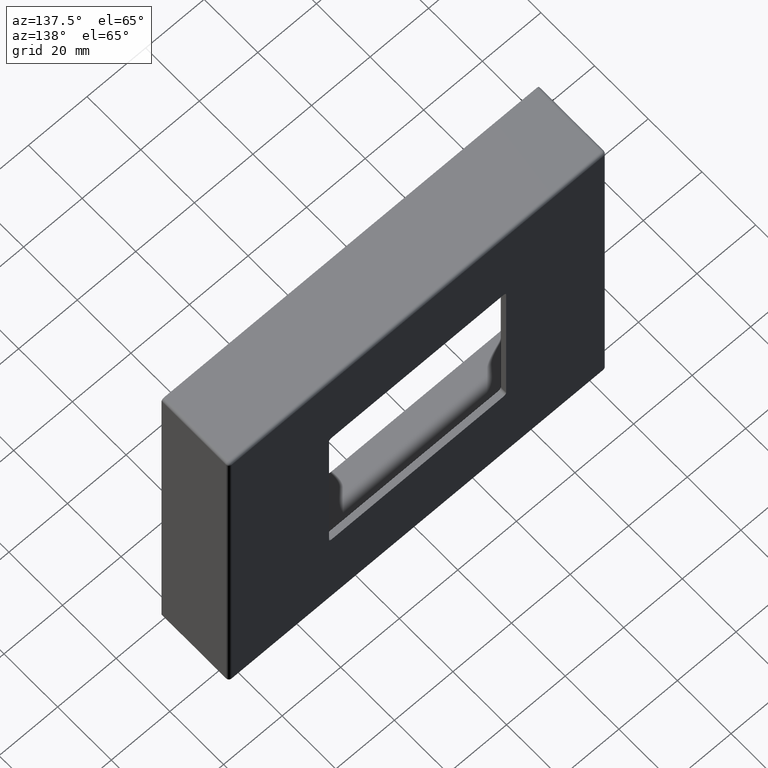
[diagram: clean part render]
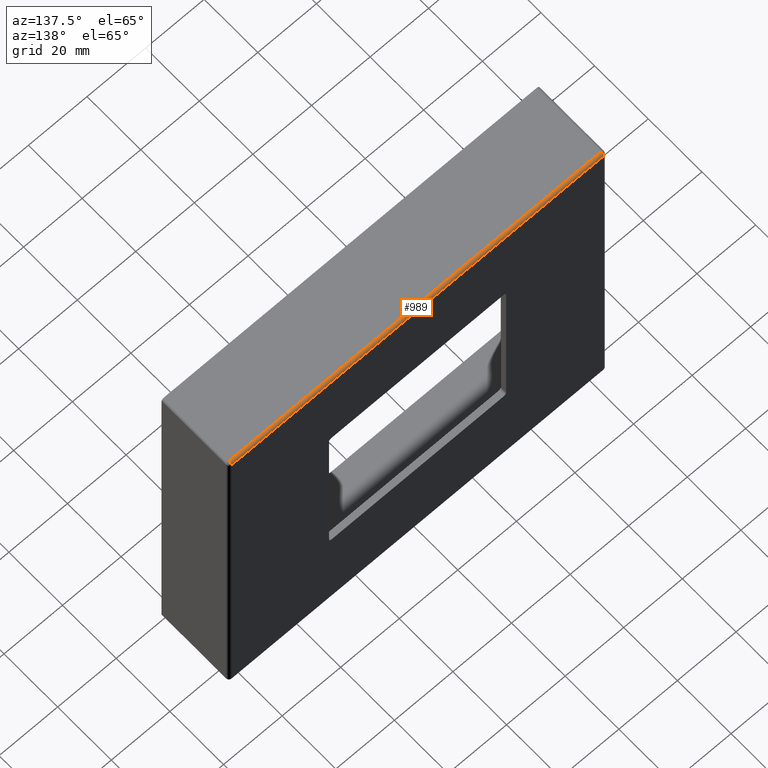
[diagram: same view with one face highlighted and labeled with its STEP entity id]
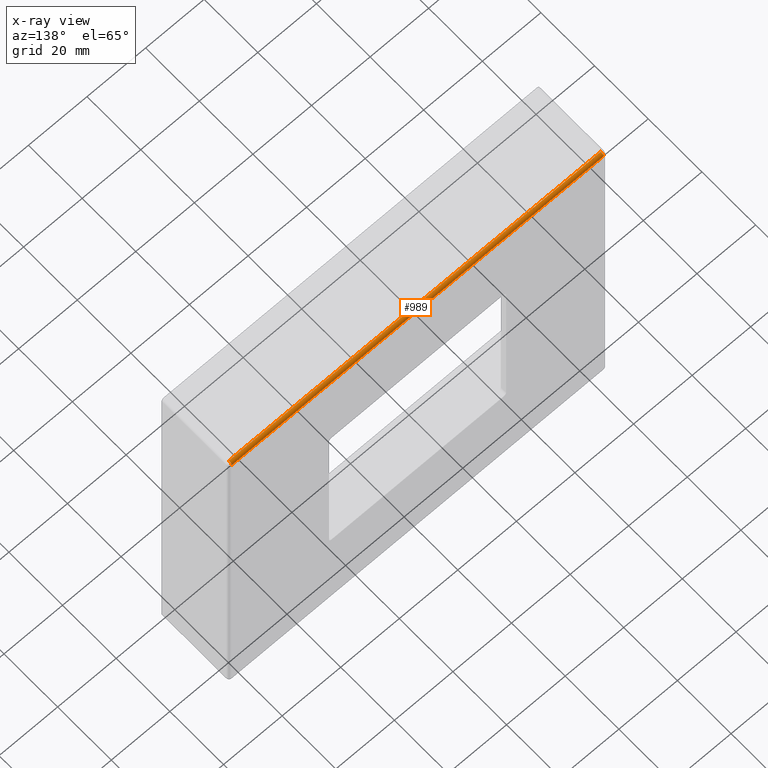
[diagram: x-ray of the same camera — body ghosted, the highlighted face saturated]
A machine part, auxiliary view. The second image highlights one B-rep face of the part: STEP entity #989.
The next image is the same camera in x-ray: the body ghosted, the highlighted face saturated — about 0% of this face is hidden behind the body in this view.
In plain terms, the highlighted cylindrical surface (edge-blend (fillet) strip) has radius 1 mm, axis along (-1, 0, 0).
Its self-contained STEP definition (entity closure, byte-faithful):
#211 = VERTEX_POINT ( 'NONE', #16668 ) ;
#497 = ORIENTED_EDGE ( 'NONE', *, *, #11569, .T. ) ;
#692 = DIRECTION ( 'NONE',  ( 0.000000000000000000, 0.000000000000000000, 1.000000000000000000 ) ) ;
#879 = ORIENTED_EDGE ( 'NONE', *, *, #13489, .T. ) ;
#989 = ADVANCED_FACE ( 'NONE', ( #14442 ), #7274, .T. ) ;
#1143 = DIRECTION ( 'NONE',  ( -1.000000000000000000, 0.000000000000000000, 0.000000000000000000 ) ) ;
#2143 = CIRCLE ( 'NONE', #10997, 1.000000000000000888 ) ;
#2892 = EDGE_CURVE ( 'NONE', #211, #9821, #9118, .T. ) ;
#3860 = DIRECTION ( 'NONE',  ( 0.000000000000000000, 0.000000000000000000, 1.000000000000000000 ) ) ;
#4398 = CARTESIAN_POINT ( 'NONE',  ( 63.50000000000000000, 24.00000000000000000, 64.50000000000000000 ) ) ;
#4444 = AXIS2_PLACEMENT_3D ( 'NONE', #6535, #1143, #3860 ) ;
#4463 = DIRECTION ( 'NONE',  ( 0.000000000000000000, 0.000000000000000000, -1.000000000000000000 ) ) ;
#4543 = DIRECTION ( 'NONE',  ( 1.000000000000000000, -0.000000000000000000, 0.000000000000000000 ) ) ;
#6535 = CARTESIAN_POINT ( 'NONE',  ( 0.000000000000000000, 24.00000000000000000, 63.50000000000000000 ) ) ;
#6868 = CARTESIAN_POINT ( 'NONE',  ( -63.49999999999997158, 24.00000000000000000, 64.50000000000000000 ) ) ;
#7274 = CYLINDRICAL_SURFACE ( 'NONE', #4444, 1.000000000000000888 ) ;
#7482 = DIRECTION ( 'NONE',  ( 1.000000000000000000, -0.000000000000000000, -0.000000000000000000 ) ) ;
#8189 = ORIENTED_EDGE ( 'NONE', *, *, #2892, .F. ) ;
#8577 = DIRECTION ( 'NONE',  ( -1.000000000000000000, -0.000000000000000000, -0.000000000000000000 ) ) ;
#9005 = CARTESIAN_POINT ( 'NONE',  ( -64.49999999999997158, 24.00000000000000000, 64.50000000000000000 ) ) ;
#9118 = LINE ( 'NONE', #11345, #15885 ) ;
#9821 = VERTEX_POINT ( 'NONE', #11626 ) ;
#10997 = AXIS2_PLACEMENT_3D ( 'NONE', #15379, #8577, #4463 ) ;
#11345 = CARTESIAN_POINT ( 'NONE',  ( 64.50000000000000000, 25.00000000000000000, 63.50000000000000000 ) ) ;
#11569 = EDGE_CURVE ( 'NONE', #17208, #9821, #2143, .T. ) ;
#11626 = CARTESIAN_POINT ( 'NONE',  ( 63.50000000000000000, 25.00000000000000000, 63.50000000000000000 ) ) ;
#11654 = LINE ( 'NONE', #9005, #16285 ) ;
#12317 = EDGE_CURVE ( 'NONE', #17208, #15280, #11654, .T. ) ;
#12798 = CARTESIAN_POINT ( 'NONE',  ( -63.49999999999997158, 24.00000000000000000, 63.50000000000000000 ) ) ;
#13489 = EDGE_CURVE ( 'NONE', #211, #15280, #14377, .T. ) ;
#13519 = ORIENTED_EDGE ( 'NONE', *, *, #12317, .F. ) ;
#14186 = AXIS2_PLACEMENT_3D ( 'NONE', #12798, #7482, #692 ) ;
#14377 = CIRCLE ( 'NONE', #14186, 1.000000000000000888 ) ;
#14442 = FACE_OUTER_BOUND ( 'NONE', #16343, .T. ) ;
#15280 = VERTEX_POINT ( 'NONE', #6868 ) ;
#15379 = CARTESIAN_POINT ( 'NONE',  ( 63.50000000000000000, 24.00000000000000000, 63.50000000000000000 ) ) ;
#15885 = VECTOR ( 'NONE', #4543, 1000.000000000000000 ) ;
#16285 = VECTOR ( 'NONE', #16878, 1000.000000000000000 ) ;
#16343 = EDGE_LOOP ( 'NONE', ( #879, #13519, #497, #8189 ) ) ;
#16668 = CARTESIAN_POINT ( 'NONE',  ( -63.49999999999997158, 25.00000000000000000, 63.50000000000000000 ) ) ;
#16878 = DIRECTION ( 'NONE',  ( -1.000000000000000000, -0.000000000000000000, -0.000000000000000000 ) ) ;
#17208 = VERTEX_POINT ( 'NONE', #4398 ) ;